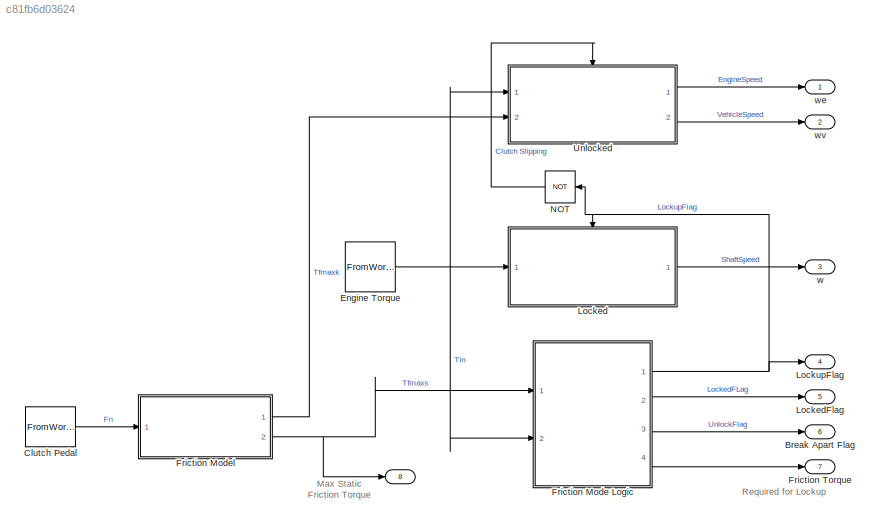
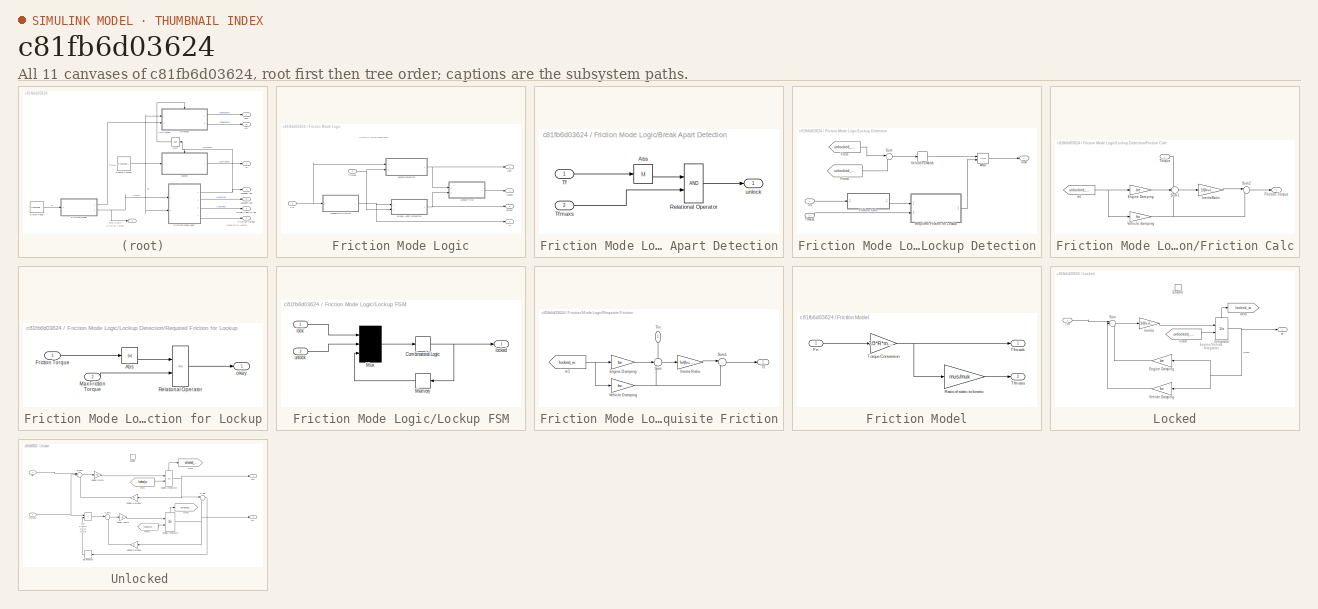
[diagram: thumbnail index - all 11 canvases of the model, root first then tree order]
MODEL slx_c81fb6d03624
KIND model
CONFIG AbsTol = auto
CONFIG EnableMultiTasking = off
CONFIG FixedStep = auto
CONFIG MaxStep = auto
CONFIG MinStep = auto
CONFIG PostLoadFcn = Clutch_data\n
CONFIG RelTol = 1e-3
CONFIG SampleTimeConstraint = Unconstrained
CONFIG Solver = VariableStepAuto
CONFIG SolverName = VariableStepAuto
CONFIG StartTime = 0.0
CONFIG StopTime = 10.0
BLOCK [Outport]  
  Port = 8
BLOCK [Outport] Break Apart Flag 
  Port = 6
BLOCK [FromWorkspace] Clutch Pedal
  VariableName = Fn
BLOCK [FromWorkspace] Engine Torque
  VariableName = Tin
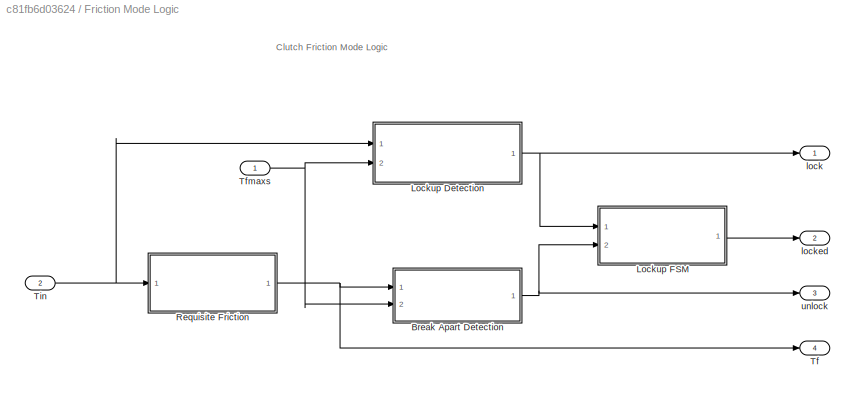
BLOCK [SubSystem] Friction Mode Logic
  Ports = [2, 4]
  RequestExecContextInheritance = off
BLOCK [SubSystem] Friction Mode Logic/Break Apart Detection
  Ports = [2, 1]
  RequestExecContextInheritance = off
BLOCK [Abs] Friction Mode Logic/Break Apart Detection/Abs
  SaturateOnIntegerOverflow = off
BLOCK [RelationalOperator] Friction Mode Logic/Break Apart Detection/Relational Operator
  InputSameDT = off
  OutDataTypeStr = boolean
  Ports = [2, 1]
  RndMeth = Simplest
BLOCK [Inport] Friction Mode Logic/Break Apart Detection/Tf
BLOCK [Inport] Friction Mode Logic/Break Apart Detection/Tfmaxs
  Port = 2
BLOCK [Outport] Friction Mode Logic/Break Apart Detection/unlock
BLOCK [SubSystem] Friction Mode Logic/Lockup Detection
  Ports = [2, 1]
  RequestExecContextInheritance = off
BLOCK [Logic] Friction Mode Logic/Lockup Detection/AND 
  AllPortsSameDT = off
  IconShape = distinctive
  OutDataTypeStr = boolean
  Ports = [2, 1]
BLOCK [SubSystem] Friction Mode Logic/Lockup Detection/Friction Calc
  Ports = [1, 1]
  RequestExecContextInheritance = off
BLOCK [Gain] Friction Mode Logic/Lockup Detection/Friction Calc/Engine Damping
  Gain = be
BLOCK [Outport] Friction Mode Logic/Lockup Detection/Friction Calc/Friction Torque
BLOCK [Gain] Friction Mode Logic/Lockup Detection/Friction Calc/InertiaRatio
  Gain = 1/(lv+le)
BLOCK [Sum] Friction Mode Logic/Lockup Detection/Friction Calc/Sum1
  Inputs = +--
  Ports = [3, 1]
BLOCK [Sum] Friction Mode Logic/Lockup Detection/Friction Calc/Sum2
  Inputs = |++
  Ports = [2, 1]
BLOCK [Inport] Friction Mode Logic/Lockup Detection/Friction Calc/Torque
BLOCK [Gain] Friction Mode Logic/Lockup Detection/Friction Calc/Vehicle damping
  Gain = bv
BLOCK [From] Friction Mode Logic/Lockup Detection/Friction Calc/w1
  GotoTag = unlocked_we
  TagVisibility = global
BLOCK [From] Friction Mode Logic/Lockup Detection/From
  GotoTag = unlocked_we
  TagVisibility = global
BLOCK [From] Friction Mode Logic/Lockup Detection/From1
  GotoTag = unlocked_wv
  TagVisibility = global
BLOCK [SubSystem] Friction Mode Logic/Lockup Detection/Required Friction for Lockup
  Ports = [2, 1]
  RequestExecContextInheritance = off
BLOCK [Abs] Friction Mode Logic/Lockup Detection/Required Friction for Lockup/Abs
  SaturateOnIntegerOverflow = off
BLOCK [Inport] Friction Mode Logic/Lockup Detection/Required Friction for Lockup/Friction Torque
BLOCK [Inport] Friction Mode Logic/Lockup Detection/Required Friction for Lockup/Max Friction Torque
  Port = 2
BLOCK [RelationalOperator] Friction Mode Logic/Lockup Detection/Required Friction for Lockup/Relational Operator
  InputSameDT = off
  Operator = <=
  OutDataTypeStr = boolean
  Ports = [2, 1]
  RndMeth = Simplest
BLOCK [Outport] Friction Mode Logic/Lockup Detection/Required Friction for Lockup/okay
BLOCK [Sum] Friction Mode Logic/Lockup Detection/Sum
  Inputs = |++
  Ports = [2, 1]
BLOCK [Inport] Friction Mode Logic/Lockup Detection/Tfmaxs
  Port = 2
BLOCK [Inport] Friction Mode Logic/Lockup Detection/Tin
BLOCK [HitCross] Friction Mode Logic/Lockup Detection/Velocities Match
  Ports = [1, 1]
BLOCK [Outport] Friction Mode Logic/Lockup Detection/lock
BLOCK [SubSystem] Friction Mode Logic/Lockup FSM
  Ports = [2, 1]
  RequestExecContextInheritance = off
BLOCK [CombinatorialLogic] Friction Mode Logic/Lockup FSM/Combinatorial Logic 
  TruthTable = [0;1;0;0;1;1;1;0]
BLOCK [Memory] Friction Mode Logic/Lockup FSM/Memory 
BLOCK [Mux] Friction Mode Logic/Lockup FSM/Mux
  Inputs = 3
  Ports = [3, 1]
BLOCK [Inport] Friction Mode Logic/Lockup FSM/lock
BLOCK [Outport] Friction Mode Logic/Lockup FSM/locked
BLOCK [Inport] Friction Mode Logic/Lockup FSM/unlock
  Port = 2
BLOCK [SubSystem] Friction Mode Logic/Requisite Friction
  Ports = [1, 1]
  RequestExecContextInheritance = off
BLOCK [Gain] Friction Mode Logic/Requisite Friction/Engine Damping
  Gain = be
BLOCK [Gain] Friction Mode Logic/Requisite Friction/Inertia Ratio
  Gain = lv/(lv+le)
BLOCK [Sum] Friction Mode Logic/Requisite Friction/Sum
  Inputs = +--
  Ports = [3, 1]
BLOCK [Sum] Friction Mode Logic/Requisite Friction/Sum1
  Inputs = |++
  Ports = [2, 1]
BLOCK [Outport] Friction Mode Logic/Requisite Friction/Tf
BLOCK [Inport] Friction Mode Logic/Requisite Friction/Tin
  NameLocation = left
BLOCK [Gain] Friction Mode Logic/Requisite Friction/Vehicle Damping
  Gain = bv
BLOCK [From] Friction Mode Logic/Requisite Friction/w1
  GotoTag = locked_w
  TagVisibility = global
BLOCK [Outport] Friction Mode Logic/Tf
  Port = 4
BLOCK [Inport] Friction Mode Logic/Tfmaxs
BLOCK [Inport] Friction Mode Logic/Tin
  Port = 2
BLOCK [Outport] Friction Mode Logic/lock
BLOCK [Outport] Friction Mode Logic/locked
  Port = 2
BLOCK [Outport] Friction Mode Logic/unlock
  Port = 3
BLOCK [SubSystem] Friction Model
  Ports = [1, 2]
  RequestExecContextInheritance = off
BLOCK [Inport] Friction Model/Fn
BLOCK [Gain] Friction Model/Ratio of static to kinetic
  Gain = mus/muk
BLOCK [Outport] Friction Model/Tfmaxk
BLOCK [Outport] Friction Model/Tfmaxs
  Port = 2
BLOCK [Gain] Friction Model/Torque Conversion
  Gain = 2/3*R*muk
BLOCK [Outport] Friction Torque 
  Port = 7
BLOCK [SubSystem] Locked
  Ports = [1, 1, 1]
  RequestExecContextInheritance = off
BLOCK [EnablePort] Locked/Enable
  Ports = []
BLOCK [Gain] Locked/Engine Damping
  Gain = be
BLOCK [From] Locked/From
  GotoTag = unlocked_we
  TagVisibility = global
BLOCK [Goto] Locked/Goto
  GotoTag = locked_w
  TagVisibility = global
BLOCK [Gain] Locked/Inertia
  Gain = 1/(lv+le)
BLOCK [Integrator] Locked/Integrator
  InitialConditionSource = external
  Ports = [2, 1, 0, 0, 1]
  ShowStatePort = on
BLOCK [Sum] Locked/Sum
  Inputs = |+--
  Ports = [3, 1]
BLOCK [Inport] Locked/Tin
BLOCK [Gain] Locked/Vehicle Damping
  Gain = bv
BLOCK [Outport] Locked/w
BLOCK [Outport] LockedFlag
  Port = 5
BLOCK [Outport] LockupFlag
  Port = 4
BLOCK [Logic] NOT
  AllPortsSameDT = off
  IconShape = distinctive
  NameLocation = top
  Operator = NOT
  OutDataTypeStr = boolean
  Ports = [1, 1]
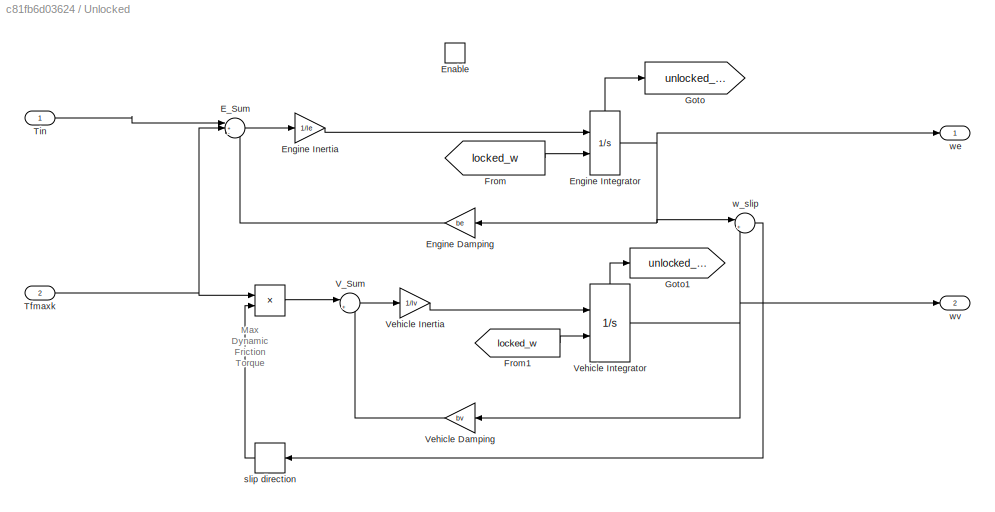
BLOCK [SubSystem] Unlocked 
  Ports = [2, 2, 1]
  RequestExecContextInheritance = off
BLOCK [Product] Unlocked / 
  Ports = [2, 1]
BLOCK [Integrator] Unlocked / Engine Integrator
  InitialConditionSource = external
  Ports = [2, 1, 0, 0, 1]
  ShowStatePort = on
BLOCK [Sum] Unlocked /E_Sum
  Inputs = |+--
  NameLocation = top
  Ports = [3, 1]
BLOCK [EnablePort] Unlocked /Enable 
  Ports = []
  StatesWhenEnabling = reset
BLOCK [Gain] Unlocked /Engine Damping
  Gain = be
BLOCK [Gain] Unlocked /Engine Inertia
  Gain = 1/le
BLOCK [From] Unlocked /From
  GotoTag = locked_w
  TagVisibility = global
BLOCK [From] Unlocked /From1
  GotoTag = locked_w
  TagVisibility = global
BLOCK [Goto] Unlocked /Goto
  GotoTag = unlocked_we
  TagVisibility = global
BLOCK [Goto] Unlocked /Goto1
  GotoTag = unlocked_wv
  TagVisibility = global
BLOCK [Inport] Unlocked /Tfmaxk
  Port = 2
BLOCK [Inport] Unlocked /Tin 
BLOCK [Sum] Unlocked /V_Sum
  Inputs = |+-
  NameLocation = top
  Ports = [2, 1]
BLOCK [Gain] Unlocked /Vehicle Damping
  Gain = bv
BLOCK [Gain] Unlocked /Vehicle Inertia
  Gain = 1/lv
BLOCK [Integrator] Unlocked /Vehicle Integrator
  InitialConditionSource = external
  Ports = [2, 1, 0, 0, 1]
  ShowStatePort = on
BLOCK [Signum] Unlocked /slip direction
BLOCK [Sum] Unlocked /w_slip
  Inputs = |+-
  NameLocation = top
  Ports = [2, 1]
BLOCK [Outport] Unlocked /we
BLOCK [Outport] Unlocked /wv
  Port = 2
BLOCK [Outport] w
  Port = 3
BLOCK [Outport] we
BLOCK [Outport] wv
  Port = 2
ANNOTATION (root): Max Static Friction Torque
ANNOTATION (root): Required for Lockup
ANNOTATION Friction Mode Logic: Clutch Friction Mode Logic
ANNOTATION Locked: Engine/Vehicle Integrator
ANNOTATION Unlocked : Max Dynamic Friction Torque
LINE Clutch Pedal:1 -> Friction Model:1
NET Engine Torque:1 -> Friction Mode Logic:2, Locked:1, Unlocked :1
LINE Friction Mode Logic/Break Apart Detection/Abs:1 -> Friction Mode Logic/Break Apart Detection/Relational Operator:1
LINE Friction Mode Logic/Break Apart Detection/Relational Operator:1 -> Friction Mode Logic/Break Apart Detection/unlock:1
LINE Friction Mode Logic/Break Apart Detection/Tf:1 -> Friction Mode Logic/Break Apart Detection/Abs:1
LINE Friction Mode Logic/Break Apart Detection/Tfmaxs:1 -> Friction Mode Logic/Break Apart Detection/Relational Operator:2
NET Friction Mode Logic/Break Apart Detection:1 -> Friction Mode Logic/Lockup FSM:2, Friction Mode Logic/unlock:1
LINE Friction Mode Logic/Lockup Detection/AND :1 -> Friction Mode Logic/Lockup Detection/lock:1
LINE Friction Mode Logic/Lockup Detection/Friction Calc/Engine Damping:1 -> Friction Mode Logic/Lockup Detection/Friction Calc/Sum1:2
LINE Friction Mode Logic/Lockup Detection/Friction Calc/InertiaRatio:1 -> Friction Mode Logic/Lockup Detection/Friction Calc/Sum2:1
LINE Friction Mode Logic/Lockup Detection/Friction Calc/Sum1:1 -> Friction Mode Logic/Lockup Detection/Friction Calc/InertiaRatio:1
LINE Friction Mode Logic/Lockup Detection/Friction Calc/Sum2:1 -> Friction Mode Logic/Lockup Detection/Friction Calc/Friction Torque:1
LINE Friction Mode Logic/Lockup Detection/Friction Calc/Torque:1 -> Friction Mode Logic/Lockup Detection/Friction Calc/Sum1:1
NET Friction Mode Logic/Lockup Detection/Friction Calc/Vehicle damping:1 -> Friction Mode Logic/Lockup Detection/Friction Calc/Sum1:3, Friction Mode Logic/Lockup Detection/Friction Calc/Sum2:2
NET Friction Mode Logic/Lockup Detection/Friction Calc/w1:1 -> Friction Mode Logic/Lockup Detection/Friction Calc/Engine Damping:1, Friction Mode Logic/Lockup Detection/Friction Calc/Vehicle damping:1
LINE Friction Mode Logic/Lockup Detection/Friction Calc:1 -> Friction Mode Logic/Lockup Detection/Required Friction for Lockup:1
LINE Friction Mode Logic/Lockup Detection/From1:1 -> Friction Mode Logic/Lockup Detection/Sum:2
LINE Friction Mode Logic/Lockup Detection/From:1 -> Friction Mode Logic/Lockup Detection/Sum:1
LINE Friction Mode Logic/Lockup Detection/Required Friction for Lockup/Abs:1 -> Friction Mode Logic/Lockup Detection/Required Friction for Lockup/Relational Operator:1
LINE Friction Mode Logic/Lockup Detection/Required Friction for Lockup/Friction Torque:1 -> Friction Mode Logic/Lockup Detection/Required Friction for Lockup/Abs:1
LINE Friction Mode Logic/Lockup Detection/Required Friction for Lockup/Max Friction Torque:1 -> Friction Mode Logic/Lockup Detection/Required Friction for Lockup/Relational Operator:2
LINE Friction Mode Logic/Lockup Detection/Required Friction for Lockup/Relational Operator:1 -> Friction Mode Logic/Lockup Detection/Required Friction for Lockup/okay:1
LINE Friction Mode Logic/Lockup Detection/Required Friction for Lockup:1 -> Friction Mode Logic/Lockup Detection/AND :2
LINE Friction Mode Logic/Lockup Detection/Sum:1 -> Friction Mode Logic/Lockup Detection/Velocities Match:1
LINE Friction Mode Logic/Lockup Detection/Tfmaxs:1 -> Friction Mode Logic/Lockup Detection/Required Friction for Lockup:2
LINE Friction Mode Logic/Lockup Detection/Tin:1 -> Friction Mode Logic/Lockup Detection/Friction Calc:1
LINE Friction Mode Logic/Lockup Detection/Velocities Match:1 -> Friction Mode Logic/Lockup Detection/AND :1
NET Friction Mode Logic/Lockup Detection:1 -> Friction Mode Logic/Lockup FSM:1, Friction Mode Logic/lock:1
NET Friction Mode Logic/Lockup FSM/Combinatorial Logic :1 -> Friction Mode Logic/Lockup FSM/Memory :1, Friction Mode Logic/Lockup FSM/locked:1
LINE Friction Mode Logic/Lockup FSM/Memory :1 -> Friction Mode Logic/Lockup FSM/Mux:3
LINE Friction Mode Logic/Lockup FSM/Mux:1 -> Friction Mode Logic/Lockup FSM/Combinatorial Logic :1
LINE Friction Mode Logic/Lockup FSM/lock:1 -> Friction Mode Logic/Lockup FSM/Mux:1
LINE Friction Mode Logic/Lockup FSM/unlock:1 -> Friction Mode Logic/Lockup FSM/Mux:2
LINE Friction Mode Logic/Lockup FSM:1 -> Friction Mode Logic/locked:1
LINE Friction Mode Logic/Requisite Friction/Engine Damping:1 -> Friction Mode Logic/Requisite Friction/Sum:2
LINE Friction Mode Logic/Requisite Friction/Inertia Ratio:1 -> Friction Mode Logic/Requisite Friction/Sum1:1
LINE Friction Mode Logic/Requisite Friction/Sum1:1 -> Friction Mode Logic/Requisite Friction/Tf:1
LINE Friction Mode Logic/Requisite Friction/Sum:1 -> Friction Mode Logic/Requisite Friction/Inertia Ratio:1
LINE Friction Mode Logic/Requisite Friction/Tin:1 -> Friction Mode Logic/Requisite Friction/Sum:1
NET Friction Mode Logic/Requisite Friction/Vehicle Damping:1 -> Friction Mode Logic/Requisite Friction/Sum1:2, Friction Mode Logic/Requisite Friction/Sum:3
NET Friction Mode Logic/Requisite Friction/w1:1 -> Friction Mode Logic/Requisite Friction/Engine Damping:1, Friction Mode Logic/Requisite Friction/Vehicle Damping:1
NET Friction Mode Logic/Requisite Friction:1 -> Friction Mode Logic/Break Apart Detection:1, Friction Mode Logic/Tf:1
NET Friction Mode Logic/Tfmaxs:1 -> Friction Mode Logic/Break Apart Detection:2, Friction Mode Logic/Lockup Detection:2
NET Friction Mode Logic/Tin:1 -> Friction Mode Logic/Lockup Detection:1, Friction Mode Logic/Requisite Friction:1
NET Friction Mode Logic:1 -> Locked:enable, LockupFlag:1, NOT:1
LINE Friction Mode Logic:2 -> LockedFlag:1
LINE Friction Mode Logic:3 -> Break Apart Flag :1
LINE Friction Mode Logic:4 -> Friction Torque :1
LINE Friction Model/Fn:1 -> Friction Model/Torque Conversion:1
LINE Friction Model/Ratio of static to kinetic:1 -> Friction Model/Tfmaxs:1
NET Friction Model/Torque Conversion:1 -> Friction Model/Ratio of static to kinetic:1, Friction Model/Tfmaxk:1
LINE Friction Model:1 -> Unlocked :2
NET Friction Model:2 ->  :1, Friction Mode Logic:1
LINE Locked/Engine Damping:1 -> Locked/Sum:3
LINE Locked/From:1 -> Locked/Integrator:2
LINE Locked/Inertia:1 -> Locked/Integrator:1
NET Locked/Integrator:1 -> Locked/Engine Damping:1, Locked/Vehicle Damping:1, Locked/w:1
LINE Locked/Integrator:state -> Locked/Goto:1
LINE Locked/Sum:1 -> Locked/Inertia:1
LINE Locked/Tin:1 -> Locked/Sum:1
LINE Locked/Vehicle Damping:1 -> Locked/Sum:2
LINE Locked:1 -> w:1
LINE NOT:1 -> Unlocked :enable
LINE Unlocked / :1 -> Unlocked /V_Sum:1
NET Unlocked / Engine Integrator:1 -> Unlocked /Engine Damping:1, Unlocked /w_slip:1, Unlocked /we:1
LINE Unlocked / Engine Integrator:state -> Unlocked /Goto:1
LINE Unlocked /E_Sum:1 -> Unlocked /Engine Inertia:1
LINE Unlocked /Engine Damping:1 -> Unlocked /E_Sum:3
LINE Unlocked /Engine Inertia:1 -> Unlocked / Engine Integrator:1
LINE Unlocked /From1:1 -> Unlocked /Vehicle Integrator:2
LINE Unlocked /From:1 -> Unlocked / Engine Integrator:2
NET Unlocked /Tfmaxk:1 -> Unlocked / :1, Unlocked /E_Sum:2
LINE Unlocked /Tin :1 -> Unlocked /E_Sum:1
LINE Unlocked /V_Sum:1 -> Unlocked /Vehicle Inertia:1
LINE Unlocked /Vehicle Damping:1 -> Unlocked /V_Sum:2
LINE Unlocked /Vehicle Inertia:1 -> Unlocked /Vehicle Integrator:1
NET Unlocked /Vehicle Integrator:1 -> Unlocked /Vehicle Damping:1, Unlocked /w_slip:2, Unlocked /wv:1
LINE Unlocked /Vehicle Integrator:state -> Unlocked /Goto1:1
LINE Unlocked /slip direction:1 -> Unlocked / :2
LINE Unlocked /w_slip:1 -> Unlocked /slip direction:1
LINE Unlocked :1 -> we:1
LINE Unlocked :2 -> wv:1
note: NET lines group one-source signal fan-out (src -> all destinations, sorted); 1:1 wires keep LINE
